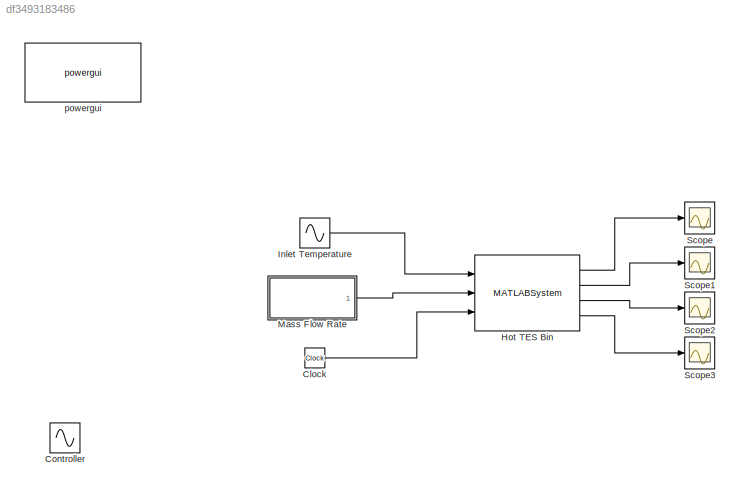
MODEL slx_df3493183486
KIND model
CONFIG AbsTol = auto
CONFIG EnableMultiTasking = off
CONFIG FixedStep = auto
CONFIG MaxStep = auto
CONFIG MinStep = auto
CONFIG RelTol = 1e-3
CONFIG SampleTimeConstraint = Unconstrained
CONFIG Solver = VariableStepAuto
CONFIG SolverName = VariableStepAuto
CONFIG StartTime = 0.0
CONFIG StopTime = 3600*24
BLOCK [Clock] Clock
BLOCK [Sin] Controller
  Amplitude = 200
  Bias = 400
  Commented = on
  Frequency = 0.0001
  Phase = pi
  Ports = [0, 1]
  SampleTime = 0
BLOCK [MATLABSystem] Hot TES Bin
  Hp = 7
  MaskDisplay = disp('TES');\nport_label('input',1,'Tin');\nport_label('input',2,'mdot');\nport_label('input',3,'t');\nport_label('output',1,'Tout');\nport_label('output',2,'Tbulk');\nport_label('output',3,'Estored');\nport_label('output',4,'ztop');
  MaskType = TES
  Ports = [3, 4]
  SimulateUsing = Interpreted execution
  System = TES
  T0 = 800
  Tinf = 20
  Tref = 0
  a = 0.01
  bp = 0.3214
  cpp = 1025.965
  h = 0.025
  hInf = 10
  hcw = 1
  hcwA = 1
  hp1 = 10
  hp2 = 10
  hp3 = 10
  hp4 = 10
  hp5 = 10
  hp5C = 2
  hp5D = 2
  hp5H = 2
  hpTop = 5
  kp = 0.4
  mup = 2.5 * 1.81e-5
  rhopLoose = 1810
  rhopPack = 2000
  tauW1 = 1.7057e-04
BLOCK [Sin] Inlet Temperature
  Amplitude = 20
  Bias = 700
  Frequency = 0.0001
  Ports = [0, 1]
  SampleTime = 0
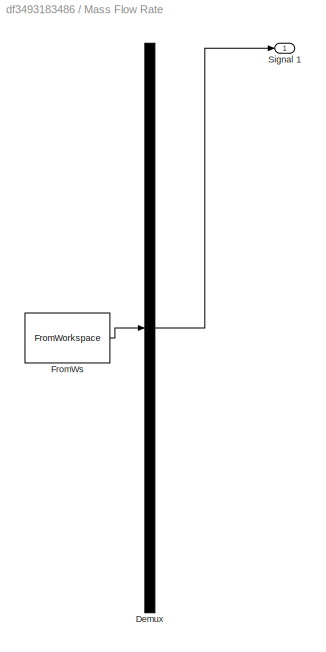
BLOCK [SubSystem] Mass Flow Rate
  ClipboardFcn = sigbuilder_block('clipboard');
  CloseFcn = sigbuilder_block('close');
  ContinueFcn = sigbuilder_block('continue');
  CopyFcn = sigbuilder_block('copy');
  DeleteFcn = sigbuilder_block('delete');
  LoadFcn = sigbuilder_block('load');
  MaskHideContents = on
  ModelCloseFcn = sigbuilder_block('modelClose');
  NameChangeFcn = sigbuilder_block('namechange');
  OpenFcn = sigbuilder_block('open',[437.6 199.2 550.4 400 ]);
  PauseFcn = sigbuilder_block('pause');
  Ports = [0, 1]
  PreSaveFcn = sigbuilder_block('preSave');
  RequestExecContextInheritance = off
  StartFcn = sigbuilder_block('start');
  StopFcn = sigbuilder_block('stop');
  Tag = STV Subsys
BLOCK [Demux] Mass Flow Rate/Demux
  Outputs = 1
  Ports = [1, 1]
  Tag = STV Demux
BLOCK [FromWorkspace] Mass Flow Rate/FromWs
  SampleTime = 0
  Tag = STV FromWs
  VariableName = tuvar
  ZeroCross = on
BLOCK [Outport] Mass Flow Rate/Signal 1
  IconDisplay = Port number
  Tag = STV Outport
BLOCK [Scope] Scope
  Floating = off
  NumInputPorts = 1
  Ports = [1]
  ScopeSpecificationString = Simulink.scopes.TimeScopeBlockCfg('CurrentConfiguration', extmgr.ConfigurationSet(extmgr.Configuration('Core','General UI',true),extmgr.Configuration('Core','Source UI',true),extmgr.Configuration('Sources','WiredSimulink',true),extmgr.Configuration('Visuals','Time Domain',true,'SerializedDisplays',{struct('MinYLimReal','-0.01707','MaxYLimReal','0.15366','YLabelReal','','MinYLimMag','0.00000','MaxY...<+1411ch>
BLOCK [Scope] Scope1
  Floating = off
  NumInputPorts = 1
  Ports = [1]
  ScopeSpecificationString = Simulink.scopes.TimeScopeBlockCfg('CurrentConfiguration', extmgr.ConfigurationSet(extmgr.Configuration('Core','General UI',true),extmgr.Configuration('Core','Source UI',true),extmgr.Configuration('Sources','WiredSimulink',true,'DataLoggingVariableName','ScopeData1'),extmgr.Configuration('Visuals','Time Domain',true,'SerializedDisplays',{struct('MinYLimReal','-0.01707','MaxYLimReal','0.15366','YLab...<+1450ch>
BLOCK [Scope] Scope2
  Floating = off
  NumInputPorts = 1
  Ports = [1]
  ScopeSpecificationString = Simulink.scopes.TimeScopeBlockCfg('CurrentConfiguration', extmgr.ConfigurationSet(extmgr.Configuration('Core','General UI',true),extmgr.Configuration('Core','Source UI',true),extmgr.Configuration('Sources','WiredSimulink',true,'DataLoggingVariableName','ScopeData2'),extmgr.Configuration('Visuals','Time Domain',true,'SerializedDisplays',{struct('MinYLimReal','-0.01707','MaxYLimReal','0.15366','YLab...<+1450ch>
BLOCK [Scope] Scope3
  Floating = off
  NumInputPorts = 1
  Ports = [1]
  ScopeSpecificationString = Simulink.scopes.TimeScopeBlockCfg('CurrentConfiguration', extmgr.ConfigurationSet(extmgr.Configuration('Core','General UI',true),extmgr.Configuration('Core','Source UI',true),extmgr.Configuration('Sources','WiredSimulink',true,'DataLoggingVariableName','ScopeData3'),extmgr.Configuration('Visuals','Time Domain',true,'SerializedDisplays',{struct('MinYLimReal','-0.01707','MaxYLimReal','0.15366','YLab...<+1450ch>
BLOCK [Reference] powergui  REF=powerlib/powergui
  Ports = []
  Priority = 1
  SourceBlock = powerlib/powergui
  SourceProductBaseCode = PS
  SourceProductName = Simscape Electrical
  SourceType = PSB option menu block
LINE Clock:1 -> Hot TES Bin:3
LINE Hot TES Bin:1 -> Scope:1
LINE Hot TES Bin:2 -> Scope1:1
LINE Hot TES Bin:3 -> Scope2:1
LINE Hot TES Bin:4 -> Scope3:1
LINE Inlet Temperature:1 -> Hot TES Bin:1
LINE Mass Flow Rate:1 -> Hot TES Bin:2
